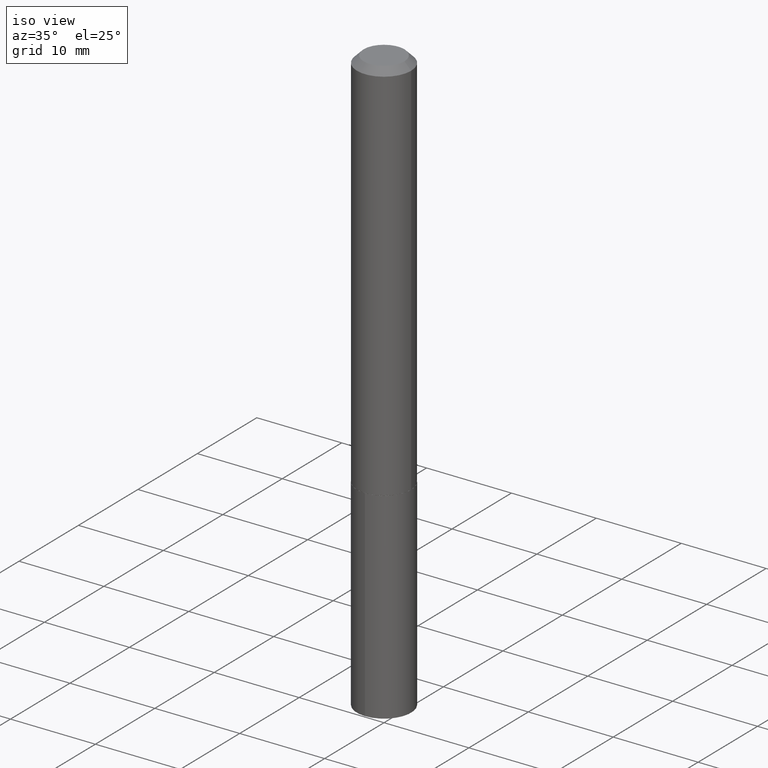
[diagram: clean part render]
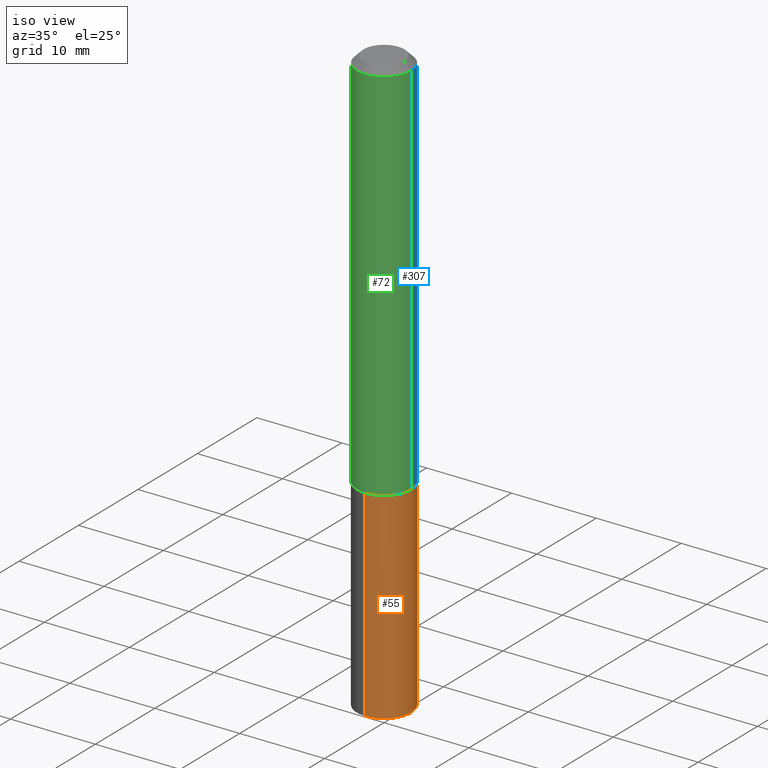
[diagram: same view with three faces highlighted in distinct colors, each labeled with its STEP entity id]
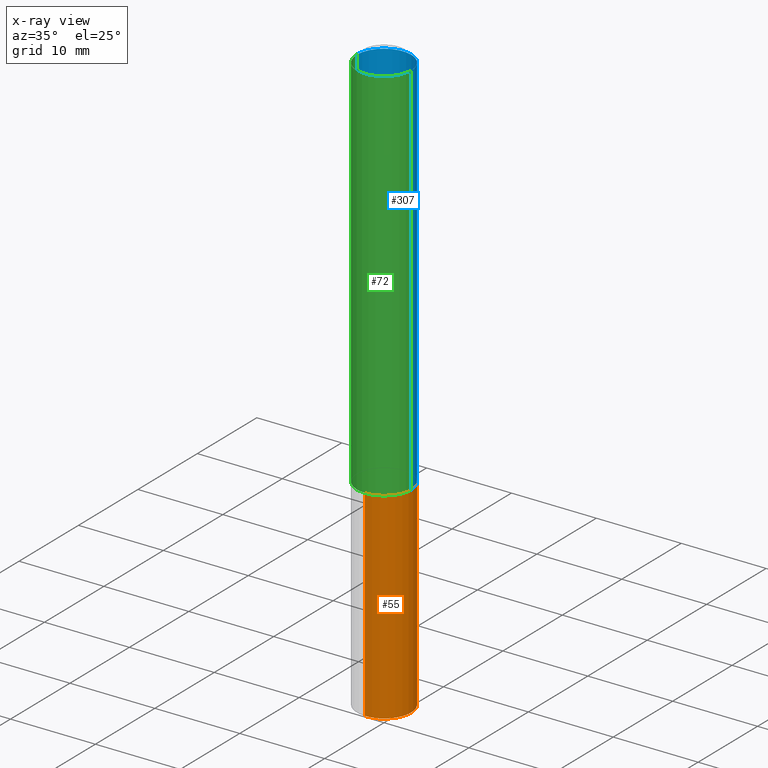
[diagram: x-ray of the same camera — body ghosted, the three highlighted faces saturated]
A machine part, iso view with three faces highlighted in distinct colors.
The next image is the same camera in x-ray (body ghosted, the three faces saturated) — at least one of them is partly hidden behind the body in this view.
Their STEP definitions:

[orange] entity #55 — the highlighted cylindrical surface (edge-blend (fillet) strip) has radius 3.2004 mm, axis along (-0, 0, 1).
#33 = ORIENTED_EDGE ( 'NONE', *, *, #183, .F. ) ;
#55 = ADVANCED_FACE ( 'NONE', ( #229 ), #162, .T. ) ;
#57 = CARTESIAN_POINT ( 'NONE',  ( -8.798532973884258671E-16, -0.1260000000000062459, -1.787399999999999656 ) ) ;
#68 = CARTESIAN_POINT ( 'NONE',  ( -8.798532973884258671E-16, -0.1260000000000062459, -1.787399999999999656 ) ) ;
#71 = DIRECTION ( 'NONE',  ( -6.982962677686265922E-15, -1.000000000000000000, 4.336266656609941617E-15 ) ) ;
#89 = CIRCLE ( 'NONE', #325, 0.1260000000000000009 ) ;
#107 = CARTESIAN_POINT ( 'NONE',  ( 8.952838470577930965E-16, 0.1259999999999937559, -1.787400000000000766 ) ) ;
#112 = DIRECTION ( 'NONE',  ( -2.445509556523788279E-29, 3.491422982038831222E-15, 1.000000000000000000 ) ) ;
#128 = EDGE_CURVE ( 'NONE', #213, #368, #89, .T. ) ;
#143 = VECTOR ( 'NONE', #327, 39.37007874015748143 ) ;
#144 = VERTEX_POINT ( 'NONE', #107 ) ;
#146 = DIRECTION ( 'NONE',  ( -2.445509556523788279E-29, 3.491422982038831617E-15, 1.000000000000000000 ) ) ;
#155 = EDGE_CURVE ( 'NONE', #213, #357, #173, .T. ) ;
#162 = CYLINDRICAL_SURFACE ( 'NONE', #238, 0.1260000000000000009 ) ;
#168 = VECTOR ( 'NONE', #146, 39.37007874015748143 ) ;
#173 = LINE ( 'NONE', #57, #143 ) ;
#174 = DIRECTION ( 'NONE',  ( -6.982962677686265922E-15, -1.000000000000000000, 4.336266656609941617E-15 ) ) ;
#183 = EDGE_CURVE ( 'NONE', #357, #144, #354, .T. ) ;
#185 = LINE ( 'NONE', #241, #168 ) ;
#197 = DIRECTION ( 'NONE',  ( -6.982962677686265922E-15, -1.000000000000000000, 4.336266656609941617E-15 ) ) ;
#210 = ORIENTED_EDGE ( 'NONE', *, *, #297, .T. ) ;
#213 = VERTEX_POINT ( 'NONE', #384 ) ;
#229 = FACE_OUTER_BOUND ( 'NONE', #312, .T. ) ;
#232 = ORIENTED_EDGE ( 'NONE', *, *, #155, .F. ) ;
#238 = AXIS2_PLACEMENT_3D ( 'NONE', #388, #112, #197 ) ;
#241 = CARTESIAN_POINT ( 'NONE',  ( 8.952838470577698251E-16, 0.1259999999999937559, -1.787400000000000766 ) ) ;
#246 = ORIENTED_EDGE ( 'NONE', *, *, #128, .T. ) ;
#247 = AXIS2_PLACEMENT_3D ( 'NONE', #326, #329, #174 ) ;
#277 = CARTESIAN_POINT ( 'NONE',  ( 8.952838470577932937E-16, 0.1259999999999905362, -2.722138401753679382 ) ) ;
#282 = DIRECTION ( 'NONE',  ( -2.445509556523788279E-29, 3.491422982038831222E-15, 1.000000000000000000 ) ) ;
#297 = EDGE_CURVE ( 'NONE', #368, #144, #185, .T. ) ;
#312 = EDGE_LOOP ( 'NONE', ( #246, #210, #33, #232 ) ) ;
#323 = CARTESIAN_POINT ( 'NONE',  ( 6.656942638513705697E-29, -9.504240883125278205E-15, -2.722138401753678494 ) ) ;
#325 = AXIS2_PLACEMENT_3D ( 'NONE', #323, #282, #71 ) ;
#326 = CARTESIAN_POINT ( 'NONE',  ( 4.371030944175314115E-29, -6.240673745048238660E-15, -1.787400000000000100 ) ) ;
#327 = DIRECTION ( 'NONE',  ( -2.445509556523788279E-29, 3.491422982038831617E-15, 1.000000000000000000 ) ) ;
#329 = DIRECTION ( 'NONE',  ( -2.445509556523788279E-29, 3.491422982038831222E-15, 1.000000000000000000 ) ) ;
#354 = CIRCLE ( 'NONE', #247, 0.1260000000000000009 ) ;
#357 = VERTEX_POINT ( 'NONE', #68 ) ;
#368 = VERTEX_POINT ( 'NONE', #277 ) ;
#384 = CARTESIAN_POINT ( 'NONE',  ( -8.798532973884031874E-16, -0.1260000000000095766, -2.722138401753678050 ) ) ;
#388 = CARTESIAN_POINT ( 'NONE',  ( 4.371030944175314115E-29, -6.240673745048238660E-15, -1.787400000000000100 ) ) ;

[blue] entity #307 — the highlighted cylindrical surface (edge-blend (fillet) strip) has radius 3.2004 mm, axis along (-0, 0, 1).
#5 = ORIENTED_EDGE ( 'NONE', *, *, #118, .F. ) ;
#6 = DIRECTION ( 'NONE',  ( -2.445468806185136597E-29, 3.491481338843145583E-15, 1.000000000000000000 ) ) ;
#8 = FACE_OUTER_BOUND ( 'NONE', #364, .T. ) ;
#15 = VERTEX_POINT ( 'NONE', #126 ) ;
#21 = CARTESIAN_POINT ( 'NONE',  ( 0.1260000000000001119, -8.798532973884703392E-16, 6.143982737502884452E-30 ) ) ;
#32 = CARTESIAN_POINT ( 'NONE',  ( 0.000000000000000000, 0.000000000000000000, 0.000000000000000000 ) ) ;
#50 = CARTESIAN_POINT ( 'NONE',  ( 7.642090019328603538E-31, -1.091087918388490390E-16, -0.03125000000000021511 ) ) ;
#67 = VERTEX_POINT ( 'NONE', #378 ) ;
#84 = DIRECTION ( 'NONE',  ( -2.445468806185136877E-29, 3.491481338843145188E-15, 1.000000000000000000 ) ) ;
#108 = VERTEX_POINT ( 'NONE', #165 ) ;
#113 = DIRECTION ( 'NONE',  ( -2.445468806185136597E-29, 3.491481338843145583E-15, 1.000000000000000000 ) ) ;
#118 = EDGE_CURVE ( 'NONE', #131, #108, #159, .T. ) ;
#126 = CARTESIAN_POINT ( 'NONE',  ( -0.1260000000000001952, -5.343644157321089338E-15, -1.786900000000000377 ) ) ;
#131 = VERTEX_POINT ( 'NONE', #170 ) ;
#140 = VECTOR ( 'NONE', #204, 39.37007874015748143 ) ;
#159 = LINE ( 'NONE', #21, #269 ) ;
#164 = DIRECTION ( 'NONE',  ( -2.445468806185136597E-29, 3.491481338843145583E-15, 1.000000000000000000 ) ) ;
#165 = CARTESIAN_POINT ( 'NONE',  ( 0.1260000000000000009, -9.889620892273186510E-16, -0.03125000000000021511 ) ) ;
#170 = CARTESIAN_POINT ( 'NONE',  ( 0.1260000000000001952, -7.118781301767288876E-15, -1.786900000000000377 ) ) ;
#175 = EDGE_CURVE ( 'NONE', #108, #67, #308, .T. ) ;
#179 = DIRECTION ( 'NONE',  ( 1.000000000000000000, -6.982962677686266711E-15, 4.876176775795935793E-29 ) ) ;
#190 = ORIENTED_EDGE ( 'NONE', *, *, #267, .T. ) ;
#204 = DIRECTION ( 'NONE',  ( -2.445468806185136877E-29, 3.491481338843145188E-15, 1.000000000000000000 ) ) ;
#267 = EDGE_CURVE ( 'NONE', #131, #15, #283, .T. ) ;
#269 = VECTOR ( 'NONE', #84, 39.37007874015748143 ) ;
#281 = ORIENTED_EDGE ( 'NONE', *, *, #383, .T. ) ;
#283 = CIRCLE ( 'NONE', #295, 0.1260000000000001952 ) ;
#294 = AXIS2_PLACEMENT_3D ( 'NONE', #50, #164, #321 ) ;
#295 = AXIS2_PLACEMENT_3D ( 'NONE', #389, #113, #361 ) ;
#298 = CYLINDRICAL_SURFACE ( 'NONE', #330, 0.1260000000000001119 ) ;
#307 = ADVANCED_FACE ( 'NONE', ( #8 ), #298, .T. ) ;
#308 = CIRCLE ( 'NONE', #294, 0.1260000000000000009 ) ;
#310 = LINE ( 'NONE', #386, #140 ) ;
#321 = DIRECTION ( 'NONE',  ( 1.000000000000000000, -6.982962677686265922E-15, 0.000000000000000000 ) ) ;
#330 = AXIS2_PLACEMENT_3D ( 'NONE', #32, #6, #179 ) ;
#332 = ORIENTED_EDGE ( 'NONE', *, *, #175, .F. ) ;
#361 = DIRECTION ( 'NONE',  ( 1.000000000000000000, -6.982962677686268288E-15, 0.000000000000000000 ) ) ;
#364 = EDGE_LOOP ( 'NONE', ( #190, #281, #332, #5 ) ) ;
#378 = CARTESIAN_POINT ( 'NONE',  ( -0.1260000000000000009, -2.278734551051105310E-15, -0.03125000000000021511 ) ) ;
#383 = EDGE_CURVE ( 'NONE', #15, #67, #310, .T. ) ;
#386 = CARTESIAN_POINT ( 'NONE',  ( -0.1260000000000001119, 8.952838470577270294E-16, -6.197858213721186913E-30 ) ) ;
#389 = CARTESIAN_POINT ( 'NONE',  ( 4.369808209772221314E-29, -6.238928004378817156E-15, -1.786900000000000377 ) ) ;

[green] entity #72 — the highlighted cylindrical surface (edge-blend (fillet) strip) has radius 3.2004 mm, axis along (-0, 0, 1).
#15 = VERTEX_POINT ( 'NONE', #126 ) ;
#17 = AXIS2_PLACEMENT_3D ( 'NONE', #45, #228, #263 ) ;
#21 = CARTESIAN_POINT ( 'NONE',  ( 0.1260000000000001119, -8.798532973884703392E-16, 6.143982737502884452E-30 ) ) ;
#35 = ORIENTED_EDGE ( 'NONE', *, *, #383, .F. ) ;
#41 = FACE_OUTER_BOUND ( 'NONE', #93, .T. ) ;
#45 = CARTESIAN_POINT ( 'NONE',  ( 7.642090019328603538E-31, -1.091087918388490390E-16, -0.03125000000000021511 ) ) ;
#59 = CIRCLE ( 'NONE', #17, 0.1260000000000000009 ) ;
#67 = VERTEX_POINT ( 'NONE', #378 ) ;
#69 = ORIENTED_EDGE ( 'NONE', *, *, #100, .F. ) ;
#72 = ADVANCED_FACE ( 'NONE', ( #41 ), #352, .T. ) ;
#76 = CARTESIAN_POINT ( 'NONE',  ( 0.000000000000000000, 0.000000000000000000, 0.000000000000000000 ) ) ;
#80 = AXIS2_PLACEMENT_3D ( 'NONE', #76, #319, #192 ) ;
#84 = DIRECTION ( 'NONE',  ( -2.445468806185136877E-29, 3.491481338843145188E-15, 1.000000000000000000 ) ) ;
#93 = EDGE_LOOP ( 'NONE', ( #35, #385, #101, #69 ) ) ;
#100 = EDGE_CURVE ( 'NONE', #67, #108, #59, .T. ) ;
#101 = ORIENTED_EDGE ( 'NONE', *, *, #118, .T. ) ;
#108 = VERTEX_POINT ( 'NONE', #165 ) ;
#110 = CARTESIAN_POINT ( 'NONE',  ( 4.369808209772221314E-29, -6.238928004378817156E-15, -1.786900000000000377 ) ) ;
#118 = EDGE_CURVE ( 'NONE', #131, #108, #159, .T. ) ;
#126 = CARTESIAN_POINT ( 'NONE',  ( -0.1260000000000001952, -5.343644157321089338E-15, -1.786900000000000377 ) ) ;
#131 = VERTEX_POINT ( 'NONE', #170 ) ;
#140 = VECTOR ( 'NONE', #204, 39.37007874015748143 ) ;
#159 = LINE ( 'NONE', #21, #269 ) ;
#165 = CARTESIAN_POINT ( 'NONE',  ( 0.1260000000000000009, -9.889620892273186510E-16, -0.03125000000000021511 ) ) ;
#170 = CARTESIAN_POINT ( 'NONE',  ( 0.1260000000000001952, -7.118781301767288876E-15, -1.786900000000000377 ) ) ;
#192 = DIRECTION ( 'NONE',  ( 1.000000000000000000, -6.982962677686266711E-15, 4.876176775795935793E-29 ) ) ;
#201 = DIRECTION ( 'NONE',  ( 1.000000000000000000, -6.982962677686268288E-15, 0.000000000000000000 ) ) ;
#204 = DIRECTION ( 'NONE',  ( -2.445468806185136877E-29, 3.491481338843145188E-15, 1.000000000000000000 ) ) ;
#207 = CIRCLE ( 'NONE', #275, 0.1260000000000001952 ) ;
#218 = EDGE_CURVE ( 'NONE', #15, #131, #207, .T. ) ;
#228 = DIRECTION ( 'NONE',  ( -2.445468806185136597E-29, 3.491481338843145583E-15, 1.000000000000000000 ) ) ;
#233 = DIRECTION ( 'NONE',  ( -2.445468806185136597E-29, 3.491481338843145583E-15, 1.000000000000000000 ) ) ;
#263 = DIRECTION ( 'NONE',  ( 1.000000000000000000, -6.982962677686265922E-15, 0.000000000000000000 ) ) ;
#269 = VECTOR ( 'NONE', #84, 39.37007874015748143 ) ;
#275 = AXIS2_PLACEMENT_3D ( 'NONE', #110, #233, #201 ) ;
#310 = LINE ( 'NONE', #386, #140 ) ;
#319 = DIRECTION ( 'NONE',  ( -2.445468806185136597E-29, 3.491481338843145583E-15, 1.000000000000000000 ) ) ;
#352 = CYLINDRICAL_SURFACE ( 'NONE', #80, 0.1260000000000001119 ) ;
#378 = CARTESIAN_POINT ( 'NONE',  ( -0.1260000000000000009, -2.278734551051105310E-15, -0.03125000000000021511 ) ) ;
#383 = EDGE_CURVE ( 'NONE', #15, #67, #310, .T. ) ;
#385 = ORIENTED_EDGE ( 'NONE', *, *, #218, .T. ) ;
#386 = CARTESIAN_POINT ( 'NONE',  ( -0.1260000000000001119, 8.952838470577270294E-16, -6.197858213721186913E-30 ) ) ;